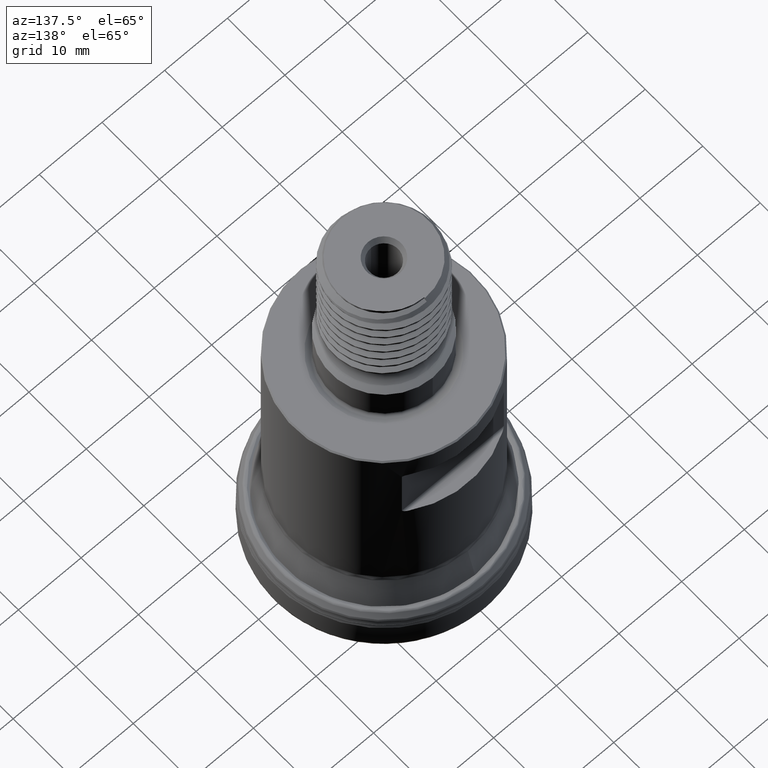
[diagram: clean part render]
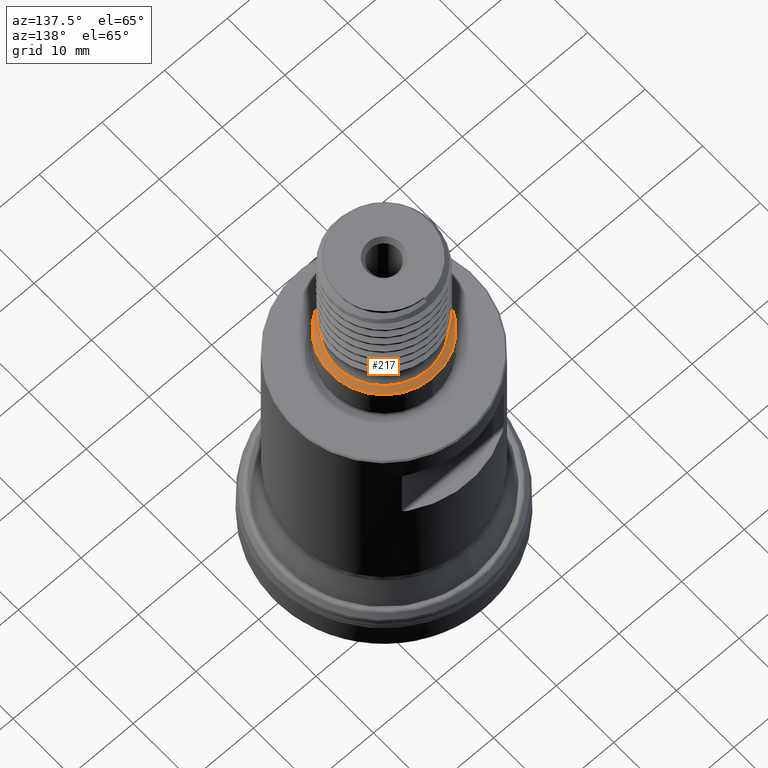
[diagram: same view with one face highlighted and labeled with its STEP entity id]
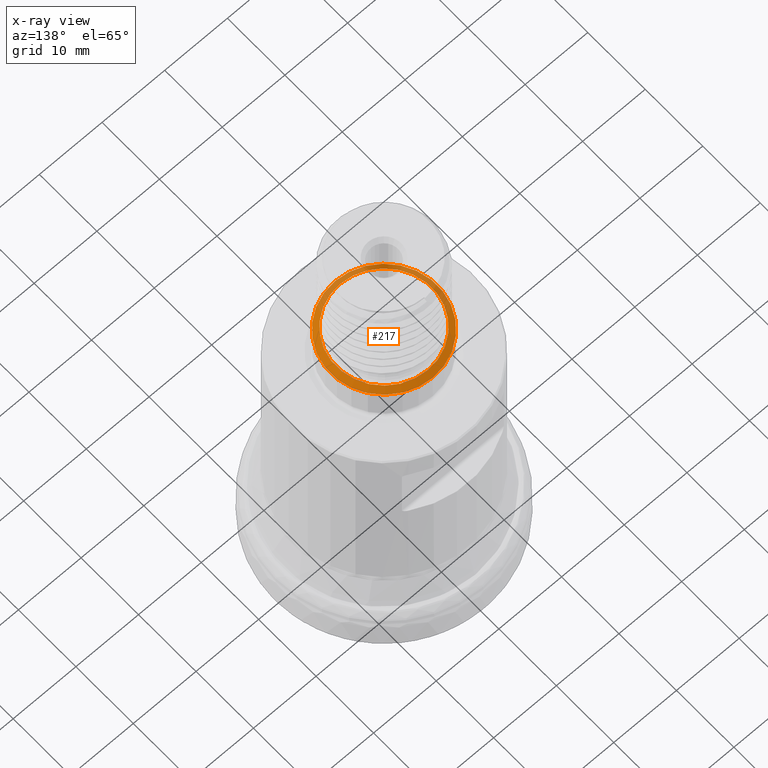
[diagram: x-ray of the same camera — body ghosted, the highlighted face saturated]
A machine part, auxiliary view. The second image highlights one B-rep face of the part: STEP entity #217.
The next image is the same camera in x-ray: the body ghosted, the highlighted face saturated — about 31% of this face is hidden behind the body in this view.
In plain terms, the highlighted conical surface has half-angle 55 deg.
Its self-contained STEP definition (entity closure, byte-faithful):
#183=CONICAL_SURFACE('',#1013,8.5,54.9999999999996);
#217=ADVANCED_FACE('',(#344,#345),#183,.T.);
#344=FACE_BOUND('',#440,.T.);
#345=FACE_BOUND('',#441,.T.);
#440=EDGE_LOOP('',(#575));
#441=EDGE_LOOP('',(#576));
#575=ORIENTED_EDGE('',*,*,#817,.F.);
#576=ORIENTED_EDGE('',*,*,#818,.T.);
#739=VERTEX_POINT('',#2034);
#740=VERTEX_POINT('',#2037);
#817=EDGE_CURVE('',#739,#739,#886,.T.);
#818=EDGE_CURVE('',#740,#740,#887,.T.);
#886=CIRCLE('',#1010,7.60284712729791);
#887=CIRCLE('',#1012,8.5);
#1010=AXIS2_PLACEMENT_3D('',#2033,#1146,#1147);
#1012=AXIS2_PLACEMENT_3D('',#2036,#1150,#1151);
#1013=AXIS2_PLACEMENT_3D('',#2038,#1152,#1153);
#1146=DIRECTION('',(1.17145536458252E-15,1.17145536458252E-15,1.));
#1147=DIRECTION('',(0.,1.,-9.12670449336437E-16));
#1150=DIRECTION('',(1.17145536458252E-15,1.17145536458252E-15,1.));
#1151=DIRECTION('',(0.,1.,-8.16340459283203E-16));
#1152=DIRECTION('',(-1.17145536458252E-15,-1.17145536458252E-15,-1.));
#1153=DIRECTION('',(5.14779608626475E-32,-1.,1.15918062679406E-15));
#2033=CARTESIAN_POINT('',(5.98358234424682E-14,5.98358234424682E-14,51.0781932043925));
#2034=CARTESIAN_POINT('',(5.98358234424682E-14,7.60284712729797,51.0781932043925));
#2036=CARTESIAN_POINT('',(5.90999231431883E-14,5.90999231431883E-14,50.45));
#2037=CARTESIAN_POINT('',(5.90999231431883E-14,8.50000000000006,50.45));
#2038=CARTESIAN_POINT('',(5.90999231431883E-14,5.90999231431883E-14,50.45));